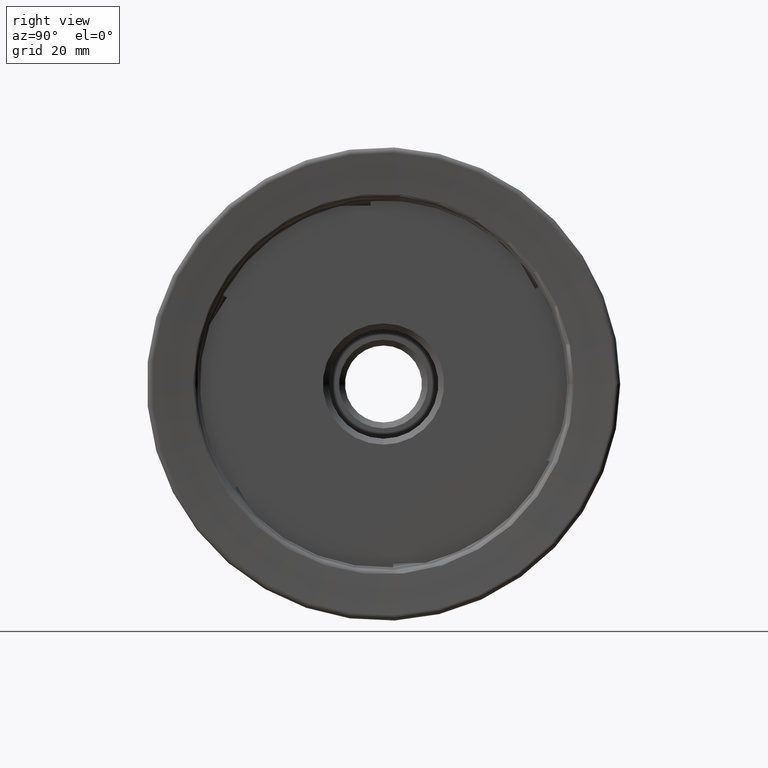
[diagram: clean part render]
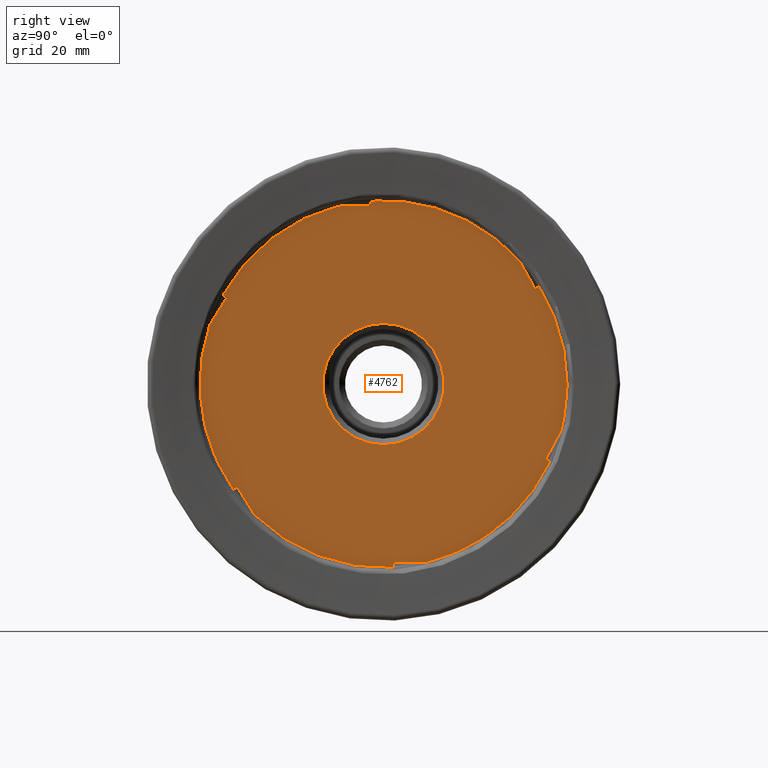
[diagram: same view with one face highlighted and labeled with its STEP entity id]
A machine part, right view. The second image highlights one B-rep face of the part: STEP entity #4762.
In plain terms, the highlighted planar face has unit normal (-1, 0, 0).
Its self-contained STEP definition (entity closure, byte-faithful):
#36 = CARTESIAN_POINT ( 'NONE',  ( -1.049999999999997200, -1.521369714661696800E-015, 1.369535699923201600E-015 ) ) ;
#39 = VERTEX_POINT ( 'NONE', #4900 ) ;
#67 = VERTEX_POINT ( 'NONE', #5393 ) ;
#203 = EDGE_CURVE ( 'NONE', #1643, #2480, #1079, .T. ) ;
#235 = CARTESIAN_POINT ( 'NONE',  ( -1.049999999999997400, 1.634309669988360400, 0.0000000000000000000 ) ) ;
#250 = ORIENTED_EDGE ( 'NONE', *, *, #203, .T. ) ;
#282 = VERTEX_POINT ( 'NONE', #3865 ) ;
#293 = ORIENTED_EDGE ( 'NONE', *, *, #5597, .T. ) ;
#303 = VERTEX_POINT ( 'NONE', #3973 ) ;
#401 = AXIS2_PLACEMENT_3D ( 'NONE', #1486, #5645, #2078 ) ;
#483 = DIRECTION ( 'NONE',  ( 0.0000000000000000000, 0.01745240643727677400, -0.9998476951563912700 ) ) ;
#522 = VERTEX_POINT ( 'NONE', #2833 ) ;
#582 = VECTOR ( 'NONE', #4158, 1000.000000000000100 ) ;
#648 = DIRECTION ( 'NONE',  ( 0.0000000000000000000, 0.0000000000000000000, 1.000000000000000000 ) ) ;
#845 = CARTESIAN_POINT ( 'NONE',  ( -1.049999999999996300, -26.47710468177342900, 14.61758857567924100 ) ) ;
#904 = CARTESIAN_POINT ( 'NONE',  ( -1.049999999999997400, 26.30099355493833700, 16.44747339904882800 ) ) ;
#905 = ORIENTED_EDGE ( 'NONE', *, *, #4873, .T. ) ;
#945 = DIRECTION ( 'NONE',  ( 1.000000000000000000, -0.0000000000000000000, -0.0000000000000000000 ) ) ;
#984 = VERTEX_POINT ( 'NONE', #3015 ) ;
#985 = LINE ( 'NONE', #6997, #5902 ) ;
#1079 = CIRCLE ( 'NONE', #3861, 31.02034240928566100 ) ;
#1199 = CARTESIAN_POINT ( 'NONE',  ( -1.049999999999997200, 28.11855960654556300, -13.09993316175584800 ) ) ;
#1287 = DIRECTION ( 'NONE',  ( 0.0000000000000000000, 1.776356839400250500E-015, 1.000000000000000000 ) ) ;
#1486 = CARTESIAN_POINT ( 'NONE',  ( -1.049999999999997200, -1.521369714661696800E-015, 1.369535699923201600E-015 ) ) ;
#1497 = EDGE_CURVE ( 'NONE', #282, #67, #1887, .T. ) ;
#1521 = VECTOR ( 'NONE', #4111, 1000.000000000000000 ) ;
#1553 = VERTEX_POINT ( 'NONE', #3365 ) ;
#1591 = EDGE_CURVE ( 'NONE', #1553, #2467, #6271, .T. ) ;
#1597 = VERTEX_POINT ( 'NONE', #5172 ) ;
#1633 = EDGE_CURVE ( 'NONE', #1553, #3142, #7650, .T. ) ;
#1643 = VERTEX_POINT ( 'NONE', #3869 ) ;
#1723 = CARTESIAN_POINT ( 'NONE',  ( -1.049999999999997200, -1.521369714661696800E-015, 1.369535699923201600E-015 ) ) ;
#1744 = DIRECTION ( 'NONE',  ( 0.0000000000000000000, 0.4848096202463291200, -0.8746197071394001800 ) ) ;
#1758 = LINE ( 'NONE', #6330, #4947 ) ;
#1824 = ORIENTED_EDGE ( 'NONE', *, *, #1633, .F. ) ;
#1837 = VERTEX_POINT ( 'NONE', #5739 ) ;
#1856 = CARTESIAN_POINT ( 'NONE',  ( -1.049999999999997200, -1.521369714661696800E-015, 1.369535699923201600E-015 ) ) ;
#1887 = CIRCLE ( 'NONE', #3371, 31.02034240928566100 ) ;
#1987 = LINE ( 'NONE', #2662, #2179 ) ;
#1990 = ORIENTED_EDGE ( 'NONE', *, *, #1497, .T. ) ;
#1997 = DIRECTION ( 'NONE',  ( 1.000000000000000000, -0.0000000000000000000, -0.0000000000000000000 ) ) ;
#1999 = VECTOR ( 'NONE', #1744, 1000.000000000000100 ) ;
#2032 = CARTESIAN_POINT ( 'NONE',  ( -1.049999999999997400, -25.40415470923139600, -17.80142035621773300 ) ) ;
#2078 = DIRECTION ( 'NONE',  ( 0.0000000000000000000, 0.0000000000000000000, 1.000000000000000000 ) ) ;
#2083 = VERTEX_POINT ( 'NONE', #904 ) ;
#2130 = DIRECTION ( 'NONE',  ( 0.0000000000000000000, -0.8746197071394001800, -0.4848096202463290600 ) ) ;
#2154 = CIRCLE ( 'NONE', #4021, 31.02034240928566100 ) ;
#2179 = VECTOR ( 'NONE', #2624, 1000.000000000000100 ) ;
#2258 = LINE ( 'NONE', #235, #6807 ) ;
#2281 = LINE ( 'NONE', #5366, #7563 ) ;
#2286 = ORIENTED_EDGE ( 'NONE', *, *, #7112, .F. ) ;
#2467 = VERTEX_POINT ( 'NONE', #2032 ) ;
#2475 = VERTEX_POINT ( 'NONE', #6021 ) ;
#2480 = VERTEX_POINT ( 'NONE', #1199 ) ;
#2567 = VERTEX_POINT ( 'NONE', #3144 ) ;
#2596 = VECTOR ( 'NONE', #2130, 1000.000000000000200 ) ;
#2610 = CARTESIAN_POINT ( 'NONE',  ( -1.049999999999997400, 22.55961991154402200, -16.02395774070353300 ) ) ;
#2624 = DIRECTION ( 'NONE',  ( 0.0000000000000000000, 0.9998476951563912700, 0.01745240643727677100 ) ) ;
#2662 = CARTESIAN_POINT ( 'NONE',  ( -1.049999999999997400, 32.03551618213399600, 30.76378232189390300 ) ) ;
#2676 = ORIENTED_EDGE ( 'NONE', *, *, #5825, .T. ) ;
#2738 = VECTOR ( 'NONE', #7147, 999.9999999999998900 ) ;
#2785 = DIRECTION ( 'NONE',  ( 0.0000000000000000000, -1.000000000000000000, 6.193192332144401800E-018 ) ) ;
#2833 = CARTESIAN_POINT ( 'NONE',  ( -1.049999999999997400, -2.174688499242929400, 30.94401998966177200 ) ) ;
#3015 = CARTESIAN_POINT ( 'NONE',  ( -1.049999999999997400, 29.99203223646824800, -7.920836162677289000 ) ) ;
#3057 = AXIS2_PLACEMENT_3D ( 'NONE', #4522, #945, #5102 ) ;
#3142 = VERTEX_POINT ( 'NONE', #845 ) ;
#3144 = CARTESIAN_POINT ( 'NONE',  ( -1.050000000000002300, 1.634309669988359900, -30.19999999999999900 ) ) ;
#3164 = DIRECTION ( 'NONE',  ( -1.000000000000000000, 0.0000000000000000000, 0.0000000000000000000 ) ) ;
#3283 = LINE ( 'NONE', #6964, #5857 ) ;
#3365 = CARTESIAN_POINT ( 'NONE',  ( -1.049999999999997400, -29.36644355352121800, 9.993679813120829500 ) ) ;
#3371 = AXIS2_PLACEMENT_3D ( 'NONE', #1723, #5362, #5945 ) ;
#3411 = LINE ( 'NONE', #2610, #4788 ) ;
#3478 = EDGE_LOOP ( 'NONE', ( #7284, #905, #2676, #1824, #7004, #293, #4897, #1990, #6767, #6996, #250, #5238, #5891, #5435, #3570, #4773, #6118, #7221 ) ) ;
#3531 = EDGE_CURVE ( 'NONE', #67, #2567, #2258, .T. ) ;
#3542 = CARTESIAN_POINT ( 'NONE',  ( -1.049999999999997400, 22.97780365856483800, 20.83943814544363000 ) ) ;
#3549 = CARTESIAN_POINT ( 'NONE',  ( -1.049999999999997400, -16.46422459331777000, -30.64154631638249500 ) ) ;
#3570 = ORIENTED_EDGE ( 'NONE', *, *, #7697, .T. ) ;
#3591 = CIRCLE ( 'NONE', #401, 31.02034240928566100 ) ;
#3655 = CIRCLE ( 'NONE', #5391, 10.24999999999998200 ) ;
#3712 = CIRCLE ( 'NONE', #3057, 31.02034240928566100 ) ;
#3754 = DIRECTION ( 'NONE',  ( 1.000000000000000000, -0.0000000000000000000, -0.0000000000000000000 ) ) ;
#3762 = EDGE_CURVE ( 'NONE', #5334, #522, #2154, .T. ) ;
#3816 = DIRECTION ( 'NONE',  ( 0.0000000000000000000, 0.0000000000000000000, 1.000000000000000000 ) ) ;
#3829 = CARTESIAN_POINT ( 'NONE',  ( -1.049999999999996300, 27.43227921918498400, -12.73503140703191900 ) ) ;
#3861 = AXIS2_PLACEMENT_3D ( 'NONE', #1856, #3754, #1287 ) ;
#3865 = CARTESIAN_POINT ( 'NONE',  ( -1.049999999999997400, -21.85566145432686700, -22.01344374656489900 ) ) ;
#3869 = CARTESIAN_POINT ( 'NONE',  ( -1.049999999999997400, 7.086723021914068000, -30.19999999999999900 ) ) ;
#3973 = CARTESIAN_POINT ( 'NONE',  ( -1.049999999999997400, -7.612706354078269100, 30.07172002323616800 ) ) ;
#4016 = DIRECTION ( 'NONE',  ( 0.0000000000000000000, -0.8829475928589216600, 0.4694715627859006300 ) ) ;
#4021 = AXIS2_PLACEMENT_3D ( 'NONE', #36, #4214, #648 ) ;
#4088 = CARTESIAN_POINT ( 'NONE',  ( -1.049999999999997400, -16.46422459331747100, 30.64154631638278300 ) ) ;
#4111 = DIRECTION ( 'NONE',  ( 0.0000000000000000000, 0.5299192642332089000, 0.8480480961564235100 ) ) ;
#4127 = EDGE_CURVE ( 'NONE', #984, #2083, #3712, .T. ) ;
#4158 = DIRECTION ( 'NONE',  ( 0.0000000000000000000, -0.5299192642332029000, 0.8480480961564271800 ) ) ;
#4214 = DIRECTION ( 'NONE',  ( 1.000000000000000000, -0.0000000000000000000, -0.0000000000000000000 ) ) ;
#4261 = EDGE_CURVE ( 'NONE', #522, #39, #985, .T. ) ;
#4395 = LINE ( 'NONE', #5107, #2596 ) ;
#4522 = CARTESIAN_POINT ( 'NONE',  ( -1.049999999999997200, -1.521369714661696800E-015, 1.369535699923201600E-015 ) ) ;
#4664 = EDGE_CURVE ( 'NONE', #984, #7589, #2281, .T. ) ;
#4673 = DIRECTION ( 'NONE',  ( 1.000000000000000000, -0.0000000000000000000, -0.0000000000000000000 ) ) ;
#4762 = ADVANCED_FACE ( 'NONE', ( #5710, #7281 ), #6696, .F. ) ;
#4773 = ORIENTED_EDGE ( 'NONE', *, *, #5344, .F. ) ;
#4788 = VECTOR ( 'NONE', #6794, 1000.000000000000200 ) ;
#4860 = EDGE_CURVE ( 'NONE', #303, #39, #1987, .T. ) ;
#4873 = EDGE_CURVE ( 'NONE', #303, #5352, #3591, .T. ) ;
#4897 = ORIENTED_EDGE ( 'NONE', *, *, #6931, .F. ) ;
#4900 = CARTESIAN_POINT ( 'NONE',  ( -1.049999999999999800, -2.161123431115422800, 30.16687775711800900 ) ) ;
#4947 = VECTOR ( 'NONE', #2785, 1000.000000000000000 ) ;
#5102 = DIRECTION ( 'NONE',  ( 0.0000000000000000000, -1.776356839400250500E-015, 1.000000000000000000 ) ) ;
#5107 = CARTESIAN_POINT ( 'NONE',  ( -1.049999999999997400, 24.12431856664632300, 15.24092275096774300 ) ) ;
#5172 = CARTESIAN_POINT ( 'NONE',  ( -1.049999999999996300, 25.62118610513793000, 16.07064997637945000 ) ) ;
#5238 = ORIENTED_EDGE ( 'NONE', *, *, #6872, .T. ) ;
#5284 = CARTESIAN_POINT ( 'NONE',  ( -1.049999999999997200, -1.521369714661696800E-015, 1.369535699923201600E-015 ) ) ;
#5307 = CARTESIAN_POINT ( 'NONE',  ( -1.049999999999997400, 34.06936753849161200, 0.8297272254117088500 ) ) ;
#5308 = AXIS2_PLACEMENT_3D ( 'NONE', #6648, #3164, #7299 ) ;
#5313 = LINE ( 'NONE', #3549, #582 ) ;
#5334 = VERTEX_POINT ( 'NONE', #3542 ) ;
#5335 = EDGE_LOOP ( 'NONE', ( #2286 ) ) ;
#5344 = EDGE_CURVE ( 'NONE', #5334, #1597, #6747, .T. ) ;
#5352 = VERTEX_POINT ( 'NONE', #5942 ) ;
#5362 = DIRECTION ( 'NONE',  ( 1.000000000000000000, -0.0000000000000000000, -0.0000000000000000000 ) ) ;
#5366 = CARTESIAN_POINT ( 'NONE',  ( -1.049999999999997400, 33.84411188018928800, -0.6761280301094500000 ) ) ;
#5390 = DIRECTION ( 'NONE',  ( 0.0000000000000000000, -0.4694715627859005800, -0.8829475928589216600 ) ) ;
#5391 = AXIS2_PLACEMENT_3D ( 'NONE', #5564, #1997, #6153 ) ;
#5393 = CARTESIAN_POINT ( 'NONE',  ( -1.049999999999997400, 1.634309669988360400, -30.97726061309988000 ) ) ;
#5435 = ORIENTED_EDGE ( 'NONE', *, *, #4127, .T. ) ;
#5564 = CARTESIAN_POINT ( 'NONE',  ( -1.049999999999996700, 0.0000000000000000000, 0.0000000000000000000 ) ) ;
#5597 = EDGE_CURVE ( 'NONE', #2467, #2475, #7478, .T. ) ;
#5645 = DIRECTION ( 'NONE',  ( 1.000000000000000000, -0.0000000000000000000, -0.0000000000000000000 ) ) ;
#5710 = FACE_BOUND ( 'NONE', #5335, .T. ) ;
#5739 = CARTESIAN_POINT ( 'NONE',  ( -1.049999999999996700, 0.0000000000000000000, -10.24999999999998200 ) ) ;
#5825 = EDGE_CURVE ( 'NONE', #5352, #3142, #3411, .T. ) ;
#5857 = VECTOR ( 'NONE', #4016, 1000.000000000000200 ) ;
#5891 = ORIENTED_EDGE ( 'NONE', *, *, #4664, .F. ) ;
#5902 = VECTOR ( 'NONE', #483, 1000.000000000000100 ) ;
#5942 = CARTESIAN_POINT ( 'NONE',  ( -1.049999999999997400, -27.13625906493016200, 15.02947394789058700 ) ) ;
#5945 = DIRECTION ( 'NONE',  ( 0.0000000000000000000, 1.776356839400250500E-015, 1.000000000000000000 ) ) ;
#6021 = CARTESIAN_POINT ( 'NONE',  ( -1.049999999999992700, -24.74500032607466000, -17.38953498400639600 ) ) ;
#6118 = ORIENTED_EDGE ( 'NONE', *, *, #3762, .T. ) ;
#6135 = AXIS2_PLACEMENT_3D ( 'NONE', #5284, #4673, #6460 ) ;
#6153 = DIRECTION ( 'NONE',  ( 0.0000000000000000000, 0.0000000000000000000, -1.000000000000000000 ) ) ;
#6271 = CIRCLE ( 'NONE', #6135, 31.02034240928566100 ) ;
#6330 = CARTESIAN_POINT ( 'NONE',  ( -1.049999999999997400, 32.57249999999999800, -30.19999999999999900 ) ) ;
#6415 = EDGE_CURVE ( 'NONE', #1643, #2567, #1758, .T. ) ;
#6460 = DIRECTION ( 'NONE',  ( 0.0000000000000000000, 0.0000000000000000000, 1.000000000000000000 ) ) ;
#6552 = CARTESIAN_POINT ( 'NONE',  ( -1.049999999999997400, 24.29172426724311900, 13.25201133237611000 ) ) ;
#6648 = CARTESIAN_POINT ( 'NONE',  ( -1.049999999999997400, 32.57249999999999800, 0.0000000000000000000 ) ) ;
#6696 = PLANE ( 'NONE',  #5308 ) ;
#6747 = LINE ( 'NONE', #5307, #1999 ) ;
#6767 = ORIENTED_EDGE ( 'NONE', *, *, #3531, .T. ) ;
#6794 = DIRECTION ( 'NONE',  ( 0.0000000000000000000, 0.8480480961564234000, -0.5299192642332089000 ) ) ;
#6807 = VECTOR ( 'NONE', #3816, 1000.000000000000000 ) ;
#6872 = EDGE_CURVE ( 'NONE', #2480, #7589, #3283, .T. ) ;
#6931 = EDGE_CURVE ( 'NONE', #282, #2475, #5313, .T. ) ;
#6964 = CARTESIAN_POINT ( 'NONE',  ( -1.049999999999997400, 26.16066733899569000, -12.05890337692247100 ) ) ;
#6996 = ORIENTED_EDGE ( 'NONE', *, *, #6415, .F. ) ;
#6997 = CARTESIAN_POINT ( 'NONE',  ( -1.049999999999997400, -1.624139613249420100, -0.5969045647758954900 ) ) ;
#7004 = ORIENTED_EDGE ( 'NONE', *, *, #1591, .T. ) ;
#7112 = EDGE_CURVE ( 'NONE', #1837, #1837, #3655, .T. ) ;
#7147 = DIRECTION ( 'NONE',  ( 0.0000000000000000000, 0.8480480961564272900, 0.5299192642332030100 ) ) ;
#7221 = ORIENTED_EDGE ( 'NONE', *, *, #4261, .T. ) ;
#7281 = FACE_OUTER_BOUND ( 'NONE', #3478, .T. ) ;
#7284 = ORIENTED_EDGE ( 'NONE', *, *, #4860, .F. ) ;
#7299 = DIRECTION ( 'NONE',  ( 0.0000000000000000000, 0.0000000000000000000, 1.000000000000000000 ) ) ;
#7478 = LINE ( 'NONE', #6552, #2738 ) ;
#7563 = VECTOR ( 'NONE', #5390, 1000.000000000000000 ) ;
#7589 = VERTEX_POINT ( 'NONE', #3829 ) ;
#7650 = LINE ( 'NONE', #4088, #1521 ) ;
#7697 = EDGE_CURVE ( 'NONE', #2083, #1597, #4395, .T. ) ;